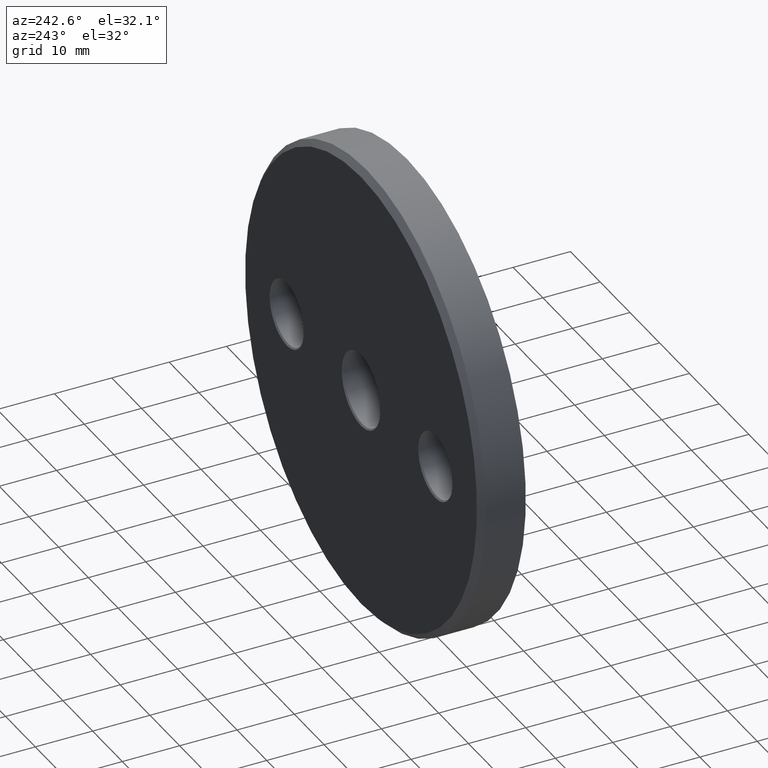
[diagram: clean part render]
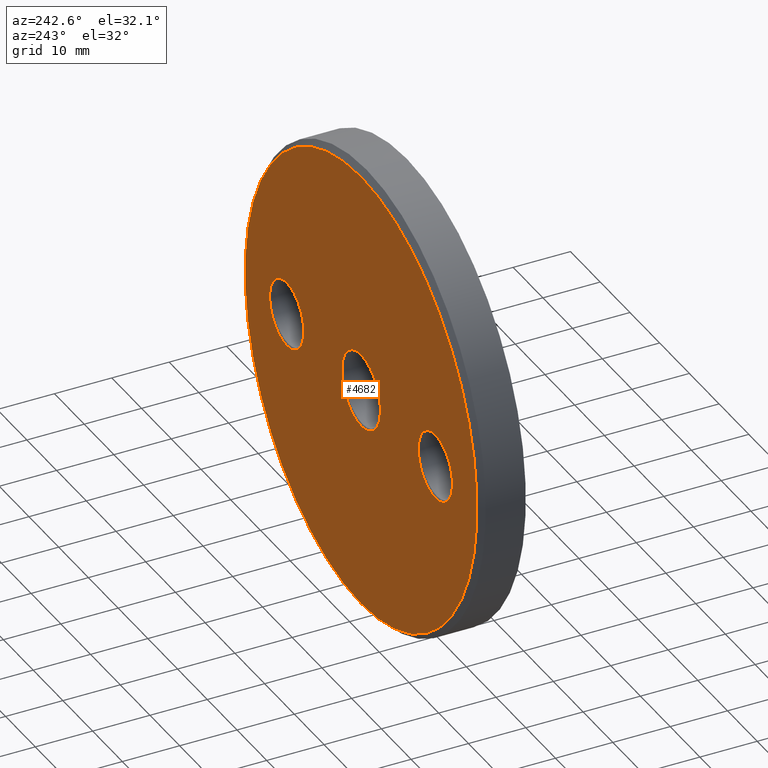
[diagram: same view with one face highlighted and labeled with its STEP entity id]
A machine part, auxiliary view. The second image highlights one B-rep face of the part: STEP entity #4682.
In plain terms, the highlighted planar face has unit normal (0, 1, 0).
Its self-contained STEP definition (entity closure, byte-faithful):
#39 = AXIS2_PLACEMENT_3D ( 'NONE', #12953, #15473, #15595 ) ;
#240 = ORIENTED_EDGE ( 'NONE', *, *, #13119, .T. ) ;
#406 = DIRECTION ( 'NONE',  ( 0.000000000000000000, 1.000000000000000000, 0.000000000000000000 ) ) ;
#886 = CIRCLE ( 'NONE', #17079, 39.00000000000002132 ) ;
#1173 = DIRECTION ( 'NONE',  ( -0.000000000000000000, -1.000000000000000000, -0.000000000000000000 ) ) ;
#1563 = CIRCLE ( 'NONE', #39, 5.750000000000005329 ) ;
#1580 = FACE_BOUND ( 'NONE', #12894, .T. ) ;
#1737 = ORIENTED_EDGE ( 'NONE', *, *, #14172, .T. ) ;
#2053 = CARTESIAN_POINT ( 'NONE',  ( 7.960204194457835906E-16, 8.000000000000000000, -6.500000000000032863 ) ) ;
#2147 = CIRCLE ( 'NONE', #4224, 6.500000000000032863 ) ;
#2328 = AXIS2_PLACEMENT_3D ( 'NONE', #14541, #7949, #9283 ) ;
#2637 = DIRECTION ( 'NONE',  ( -0.000000000000000000, -1.000000000000000000, -0.000000000000000000 ) ) ;
#2848 = CARTESIAN_POINT ( 'NONE',  ( 0.000000000000000000, 8.000000000000000000, 6.500000000000032863 ) ) ;
#2857 = VERTEX_POINT ( 'NONE', #5776 ) ;
#3021 = AXIS2_PLACEMENT_3D ( 'NONE', #4296, #12273, #13396 ) ;
#3035 = EDGE_CURVE ( 'NONE', #14742, #2857, #9765, .T. ) ;
#3197 = ORIENTED_EDGE ( 'NONE', *, *, #3637, .T. ) ;
#3624 = CARTESIAN_POINT ( 'NONE',  ( -25.00000000000000000, 8.000000000000000000, -5.750000000000005329 ) ) ;
#3637 = EDGE_CURVE ( 'NONE', #12123, #15097, #15319, .T. ) ;
#3720 = ORIENTED_EDGE ( 'NONE', *, *, #9259, .T. ) ;
#3954 = VERTEX_POINT ( 'NONE', #2053 ) ;
#4149 = DIRECTION ( 'NONE',  ( 0.000000000000000000, 0.000000000000000000, 1.000000000000000000 ) ) ;
#4186 = CIRCLE ( 'NONE', #3021, 5.750000000000032863 ) ;
#4224 = AXIS2_PLACEMENT_3D ( 'NONE', #6540, #1173, #6594 ) ;
#4270 = CARTESIAN_POINT ( 'NONE',  ( 0.000000000000000000, 8.000000000000000000, 0.000000000000000000 ) ) ;
#4295 = VERTEX_POINT ( 'NONE', #2848 ) ;
#4296 = CARTESIAN_POINT ( 'NONE',  ( 25.00000000000000000, 8.000000000000000000, -6.123233995736766085E-15 ) ) ;
#4456 = FACE_OUTER_BOUND ( 'NONE', #6404, .T. ) ;
#4682 = ADVANCED_FACE ( 'NONE', ( #4456, #1580, #5301, #5704 ), #16583, .T. ) ;
#4691 = ORIENTED_EDGE ( 'NONE', *, *, #9018, .T. ) ;
#4964 = AXIS2_PLACEMENT_3D ( 'NONE', #11978, #2637, #14603 ) ;
#5021 = EDGE_CURVE ( 'NONE', #4295, #3954, #13376, .T. ) ;
#5301 = FACE_BOUND ( 'NONE', #8140, .T. ) ;
#5430 = VERTEX_POINT ( 'NONE', #7937 ) ;
#5704 = FACE_BOUND ( 'NONE', #7113, .T. ) ;
#5762 = AXIS2_PLACEMENT_3D ( 'NONE', #8748, #8691, #13970 ) ;
#5776 = CARTESIAN_POINT ( 'NONE',  ( 4.837354856632047030E-15, 8.000000000000000000, 39.00000000000002132 ) ) ;
#6404 = EDGE_LOOP ( 'NONE', ( #16168, #1737 ) ) ;
#6540 = CARTESIAN_POINT ( 'NONE',  ( 0.000000000000000000, 8.000000000000000000, 0.000000000000000000 ) ) ;
#6594 = DIRECTION ( 'NONE',  ( 0.000000000000000000, 0.000000000000000000, 1.000000000000000000 ) ) ;
#7113 = EDGE_LOOP ( 'NONE', ( #3197, #240 ) ) ;
#7409 = CARTESIAN_POINT ( 'NONE',  ( 0.000000000000000000, 8.000000000000000000, -39.00000000000002132 ) ) ;
#7937 = CARTESIAN_POINT ( 'NONE',  ( 25.00000000000000000, 8.000000000000000000, -5.750000000000039080 ) ) ;
#7949 = DIRECTION ( 'NONE',  ( -0.000000000000000000, -1.000000000000000000, -0.000000000000000000 ) ) ;
#8140 = EDGE_LOOP ( 'NONE', ( #13528, #4691 ) ) ;
#8313 = DIRECTION ( 'NONE',  ( -0.000000000000000000, -1.000000000000000000, -0.000000000000000000 ) ) ;
#8691 = DIRECTION ( 'NONE',  ( 0.000000000000000000, 1.000000000000000000, 0.000000000000000000 ) ) ;
#8748 = CARTESIAN_POINT ( 'NONE',  ( 0.000000000000000000, 8.000000000000000000, 0.000000000000000000 ) ) ;
#9018 = EDGE_CURVE ( 'NONE', #5430, #11877, #13955, .T. ) ;
#9259 = EDGE_CURVE ( 'NONE', #3954, #4295, #2147, .T. ) ;
#9283 = DIRECTION ( 'NONE',  ( 0.000000000000000000, 0.000000000000000000, 1.000000000000000000 ) ) ;
#9314 = DIRECTION ( 'NONE',  ( 0.000000000000000000, 1.000000000000000000, 0.000000000000000000 ) ) ;
#9427 = CARTESIAN_POINT ( 'NONE',  ( 0.000000000000000000, 8.000000000000000000, 0.000000000000000000 ) ) ;
#9431 = DIRECTION ( 'NONE',  ( 0.000000000000000000, 0.000000000000000000, 1.000000000000000000 ) ) ;
#9650 = DIRECTION ( 'NONE',  ( 0.000000000000000000, 0.000000000000000000, 1.000000000000000000 ) ) ;
#9765 = CIRCLE ( 'NONE', #10639, 39.00000000000002132 ) ;
#10002 = ORIENTED_EDGE ( 'NONE', *, *, #5021, .T. ) ;
#10639 = AXIS2_PLACEMENT_3D ( 'NONE', #9427, #9314, #4149 ) ;
#11151 = EDGE_CURVE ( 'NONE', #11877, #5430, #4186, .T. ) ;
#11877 = VERTEX_POINT ( 'NONE', #12726 ) ;
#11978 = CARTESIAN_POINT ( 'NONE',  ( -25.00000000000000000, 8.000000000000000000, 0.000000000000000000 ) ) ;
#12123 = VERTEX_POINT ( 'NONE', #14871 ) ;
#12273 = DIRECTION ( 'NONE',  ( -0.000000000000000000, -1.000000000000000000, -0.000000000000000000 ) ) ;
#12726 = CARTESIAN_POINT ( 'NONE',  ( 25.00000000000000000, 8.000000000000000000, 5.750000000000026645 ) ) ;
#12894 = EDGE_LOOP ( 'NONE', ( #10002, #3720 ) ) ;
#12953 = CARTESIAN_POINT ( 'NONE',  ( -25.00000000000000000, 8.000000000000000000, 0.000000000000000000 ) ) ;
#13119 = EDGE_CURVE ( 'NONE', #15097, #12123, #1563, .T. ) ;
#13376 = CIRCLE ( 'NONE', #14073, 6.500000000000032863 ) ;
#13396 = DIRECTION ( 'NONE',  ( 0.000000000000000000, 0.000000000000000000, 1.000000000000000000 ) ) ;
#13528 = ORIENTED_EDGE ( 'NONE', *, *, #11151, .T. ) ;
#13955 = CIRCLE ( 'NONE', #2328, 5.750000000000032863 ) ;
#13970 = DIRECTION ( 'NONE',  ( 0.000000000000000000, -0.000000000000000000, 1.000000000000000000 ) ) ;
#14073 = AXIS2_PLACEMENT_3D ( 'NONE', #16379, #8313, #9650 ) ;
#14172 = EDGE_CURVE ( 'NONE', #2857, #14742, #886, .T. ) ;
#14541 = CARTESIAN_POINT ( 'NONE',  ( 25.00000000000000000, 8.000000000000000000, -6.123233995736766085E-15 ) ) ;
#14603 = DIRECTION ( 'NONE',  ( 0.000000000000000000, 0.000000000000000000, 1.000000000000000000 ) ) ;
#14742 = VERTEX_POINT ( 'NONE', #7409 ) ;
#14871 = CARTESIAN_POINT ( 'NONE',  ( -25.00000000000000000, 8.000000000000000000, 5.750000000000005329 ) ) ;
#15097 = VERTEX_POINT ( 'NONE', #3624 ) ;
#15319 = CIRCLE ( 'NONE', #4964, 5.750000000000005329 ) ;
#15473 = DIRECTION ( 'NONE',  ( -0.000000000000000000, -1.000000000000000000, -0.000000000000000000 ) ) ;
#15595 = DIRECTION ( 'NONE',  ( 0.000000000000000000, 0.000000000000000000, 1.000000000000000000 ) ) ;
#16168 = ORIENTED_EDGE ( 'NONE', *, *, #3035, .T. ) ;
#16379 = CARTESIAN_POINT ( 'NONE',  ( 0.000000000000000000, 8.000000000000000000, 0.000000000000000000 ) ) ;
#16583 = PLANE ( 'NONE',  #5762 ) ;
#17079 = AXIS2_PLACEMENT_3D ( 'NONE', #4270, #406, #9431 ) ;